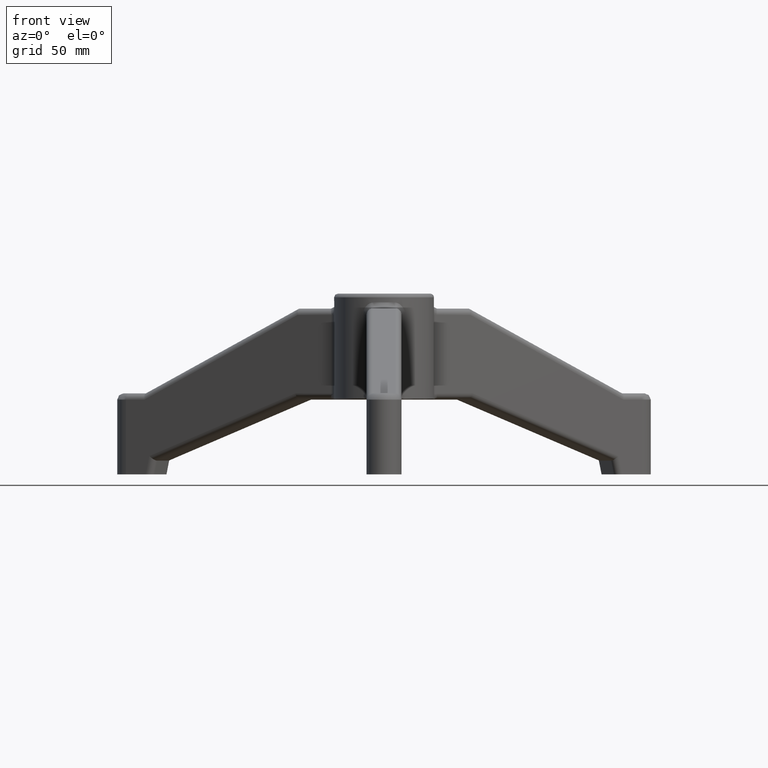
[diagram: clean part render]
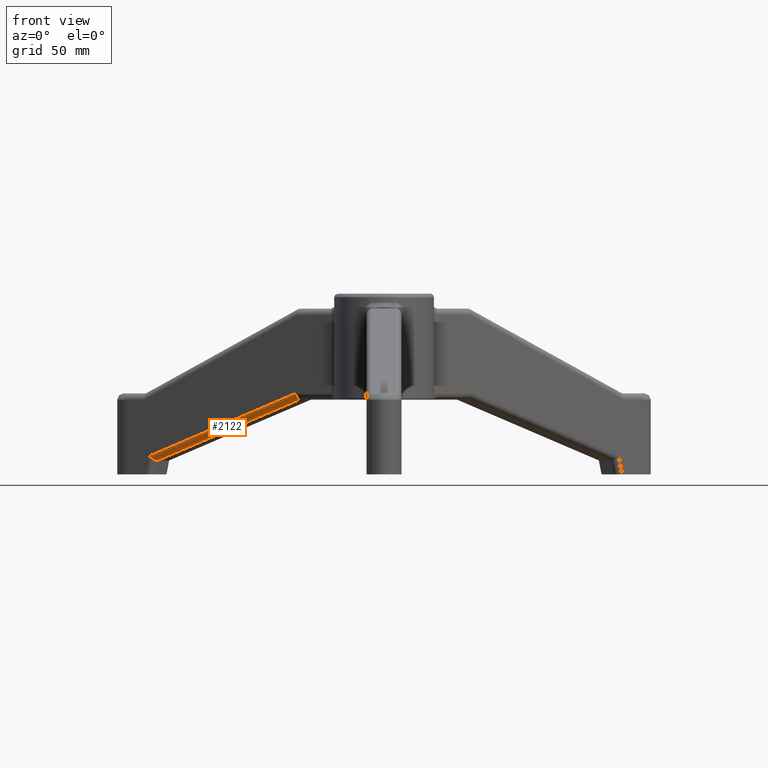
[diagram: same view with one face highlighted and labeled with its STEP entity id]
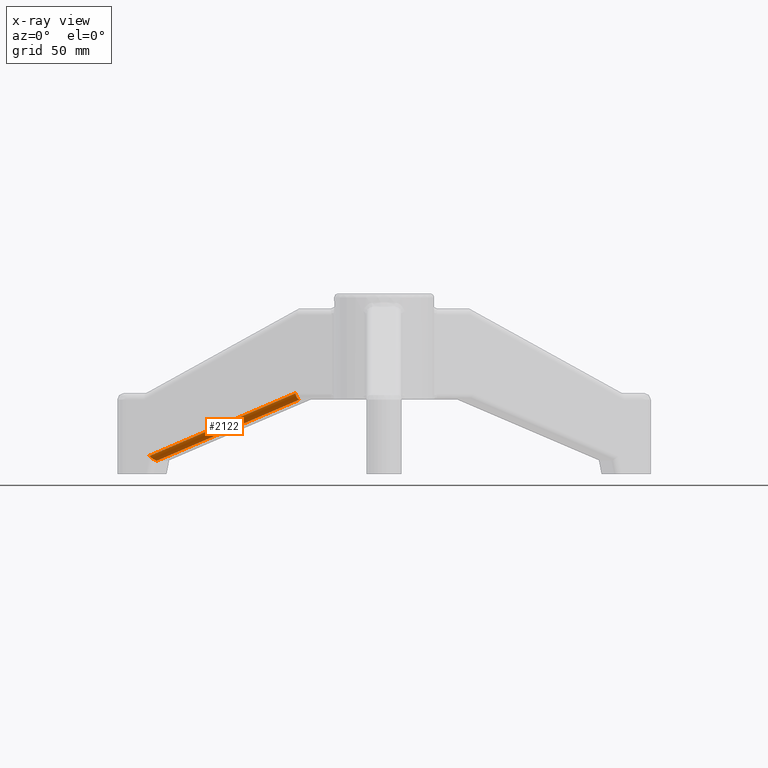
[diagram: x-ray of the same camera — body ghosted, the highlighted face saturated]
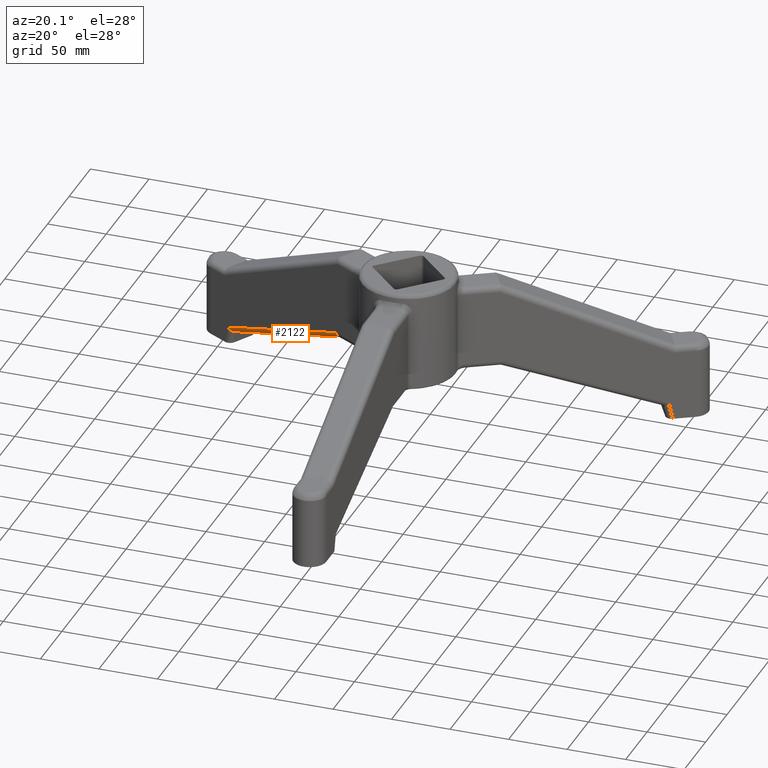
[diagram: same view with one face highlighted and labeled with its STEP entity id]
A machine part, front view. The second image highlights one B-rep face of the part: STEP entity #2122.
The next image is the same camera in x-ray: the body ghosted, the highlighted face saturated — about 0% of this face is hidden behind the body in this view.
A second angle (auxiliary view) of the same face is appended — the face is thin or edge-on in the first view.
In plain terms, the highlighted cylindrical surface (edge-blend (fillet) strip) has radius 5 mm, axis along (-0.8119, 0.4687, -0.348).
Its self-contained STEP definition (entity closure, byte-faithful):
#2071=CARTESIAN_POINT('',(-185.741311711905270,96.838883863581302,-130.253971914347830));
#2072=DIRECTION('',(-0.811891445262492,0.468745742537904,-0.348008203871936));
#2073=DIRECTION('',(0.301383945589868,-0.174004101396648,-0.937491487981533));
#2074=AXIS2_PLACEMENT_3D('',#2071,#2072,#2073);
#2075=CYLINDRICAL_SURFACE('',#2074,4.999999999999996);
#2076=CARTESIAN_POINT('',(-182.038068936007590,94.700815658878085,-134.0));
#2077=VERTEX_POINT('',#2076);
#2078=CARTESIAN_POINT('',(-67.722715518356111,28.700815863442894,-85.0));
#2079=VERTEX_POINT('',#2078);
#2080=CARTESIAN_POINT('',(-182.038068936007590,94.700815658878085,-134.0));
#2081=DIRECTION('',(0.811891445262493,-0.468745742537905,0.348008203871933));
#2082=VECTOR('',#2081,140.801278403287260);
#2083=LINE('',#2080,#2082);
#2084=EDGE_CURVE('',#2077,#2079,#2083,.T.);
#2085=ORIENTED_EDGE('',*,*,#2084,.T.);
#2086=CARTESIAN_POINT('',(-71.000483948454516,24.819733655149491,-80.0));
#2087=VERTEX_POINT('',#2086);
#2088=CARTESIAN_POINT('',(-67.722715518356196,28.700815863442937,-84.999999999999744));
#2089=CARTESIAN_POINT('',(-67.899779022558803,28.394132876730428,-84.999999999999744));
#2090=CARTESIAN_POINT('',(-68.370667773837511,27.613411075334291,-84.902900995323535));
#2091=CARTESIAN_POINT('',(-68.982107800722886,26.710425011268537,-84.468481293647642));
#2092=CARTESIAN_POINT('',(-69.692069577530688,25.778394787508585,-83.639890142140942));
#2093=CARTESIAN_POINT('',(-70.312071914124729,25.096443966743809,-82.548894555911261));
#2094=CARTESIAN_POINT('',(-70.779694763048767,24.785442529691402,-81.159987815604921));
#2095=CARTESIAN_POINT('',(-70.950816833059292,24.791058332824683,-80.319292433187144));
#2096=CARTESIAN_POINT('',(-71.000483948454587,24.819733655149534,-79.999999999999758));
#2097=B_SPLINE_CURVE_WITH_KNOTS('',3,(#2088,#2089,#2090,#2091,#2092,#2093,#2094,#2095,#2096),.UNSPECIFIED.,.F.,.U.,(4,1,1,1,1,1,4),(0.0,1.064429701993054,2.730703509338060,3.474350440817113,5.356945377875252,6.942189148345310,7.916832636710308),.UNSPECIFIED.);
#2098=EDGE_CURVE('',#2079,#2087,#2097,.T.);
#2099=ORIENTED_EDGE('',*,*,#2098,.T.);
#2100=CARTESIAN_POINT('',(-188.241311704156600,92.508756840185427,-130.253971914347830));
#2101=VERTEX_POINT('',#2100);
#2102=CARTESIAN_POINT('',(-188.241311704156600,92.508756840185427,-130.253971914347830));
#2103=DIRECTION('',(0.811891445262493,-0.468745742537905,0.348008203871933));
#2104=VECTOR('',#2103,144.404561028225860);
#2105=LINE('',#2102,#2104);
#2106=EDGE_CURVE('',#2101,#2087,#2105,.T.);
#2107=ORIENTED_EDGE('',*,*,#2106,.F.);
#2108=CARTESIAN_POINT('',(-188.241311704156600,92.508756840185427,-130.253971914347830));
#2109=CARTESIAN_POINT('',(-187.980451987693750,92.358149413287251,-130.517845466102270));
#2110=CARTESIAN_POINT('',(-187.246611739794330,92.047295864696721,-131.210743127740300));
#2111=CARTESIAN_POINT('',(-186.055733567706600,91.945935296552562,-132.158618341436640));
#2112=CARTESIAN_POINT('',(-184.792888317786580,92.250957542235270,-132.983090494056310));
#2113=CARTESIAN_POINT('',(-183.671719825294820,92.833603775210989,-133.578473824750400));
#2114=CARTESIAN_POINT('',(-182.727180478501250,93.671112045838740,-133.928221262968210));
#2115=CARTESIAN_POINT('',(-182.219379396399230,94.386776728238345,-134.0));
#2116=CARTESIAN_POINT('',(-182.038068936007590,94.700815658878085,-134.0));
#2117=B_SPLINE_CURVE_WITH_KNOTS('',3,(#2108,#2109,#2110,#2111,#2112,#2113,#2114,#2115,#2116),.UNSPECIFIED.,.F.,.U.,(4,1,1,1,1,1,4),(0.0,1.203084876831651,3.151777456404325,4.521019154691997,5.784260639018864,7.309805258595895,8.400400339412988),.UNSPECIFIED.);
#2118=EDGE_CURVE('',#2101,#2077,#2117,.T.);
#2119=ORIENTED_EDGE('',*,*,#2118,.T.);
#2120=EDGE_LOOP('',(#2085,#2099,#2107,#2119));
#2121=FACE_OUTER_BOUND('',#2120,.T.);
#2122=ADVANCED_FACE('',(#2121),#2075,.T.);